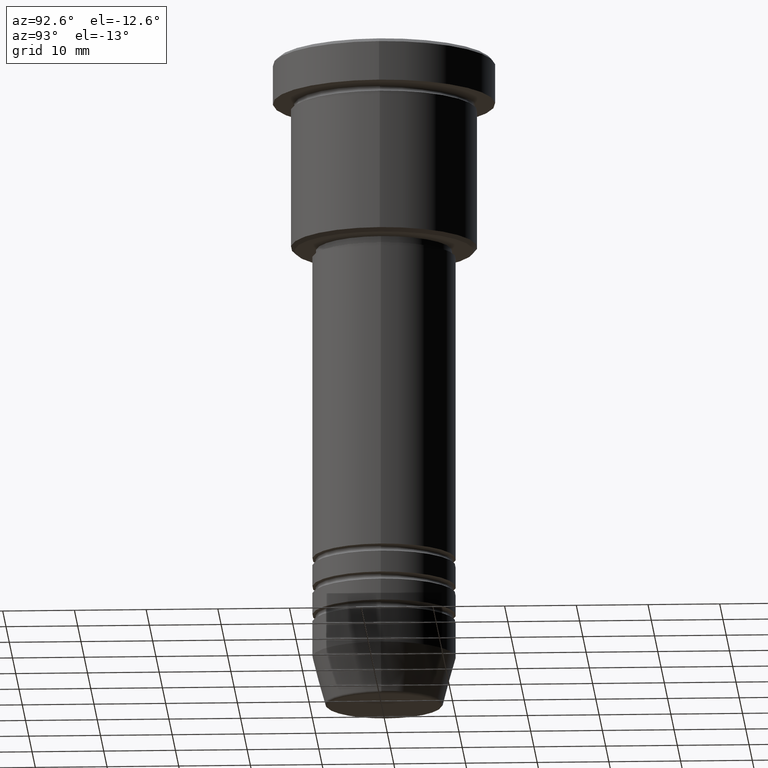
[diagram: clean part render]
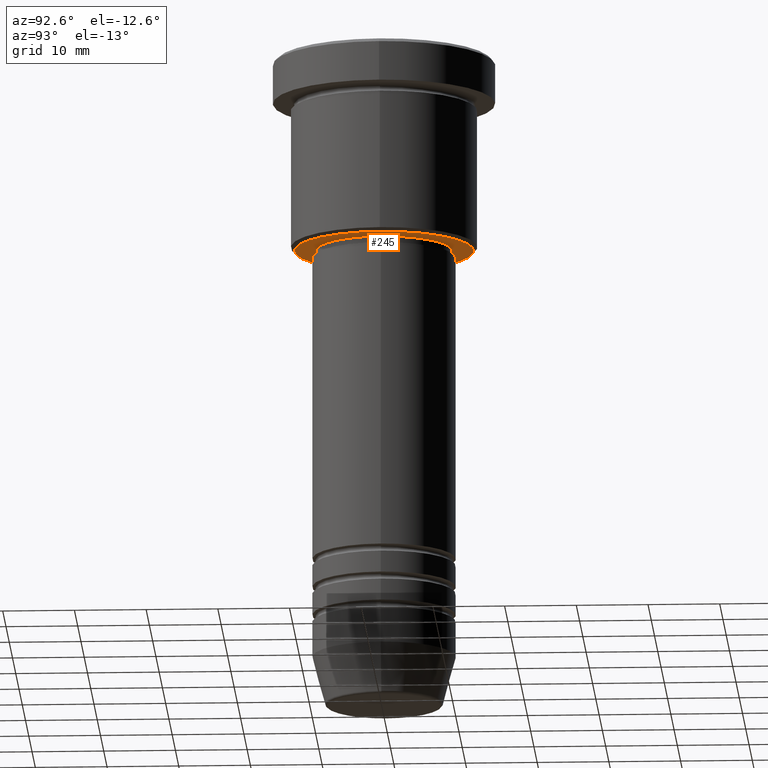
[diagram: same view with one face highlighted and labeled with its STEP entity id]
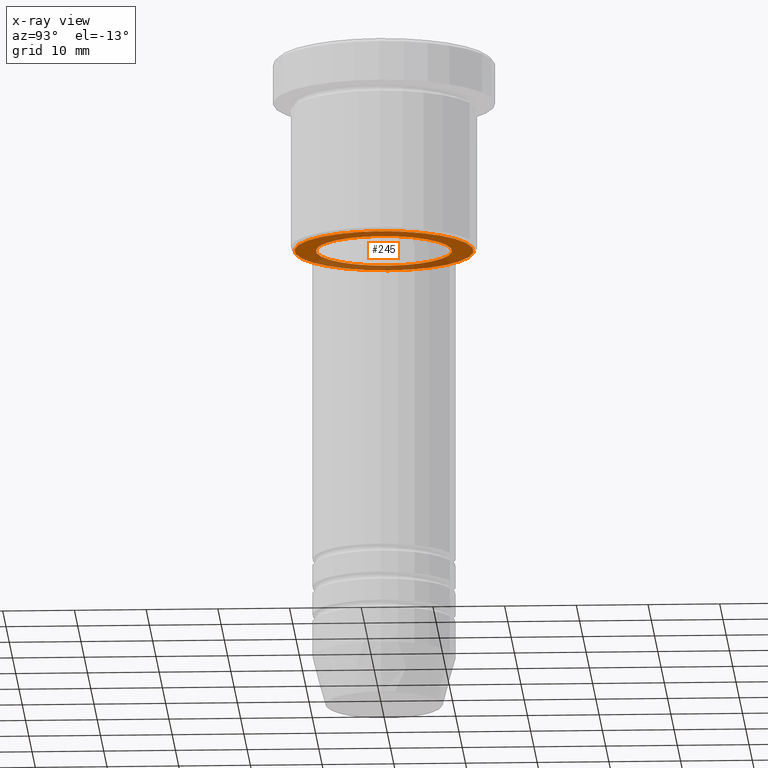
[diagram: x-ray of the same camera — body ghosted, the highlighted face saturated]
A machine part, auxiliary view. The second image highlights one B-rep face of the part: STEP entity #245.
The next image is the same camera in x-ray: the body ghosted, the highlighted face saturated — about 31% of this face is hidden behind the body in this view.
In plain terms, the highlighted planar face has unit normal (0, 0, -1).
Its self-contained STEP definition (entity closure, byte-faithful):
#39 = PLANE ( 'NONE',  #536 ) ;
#41 = EDGE_CURVE ( 'NONE', #998, #521, #109, .T. ) ;
#83 = DIRECTION ( 'NONE',  ( -1.000000000000000000, 0.000000000000000000, 0.000000000000000000 ) ) ;
#108 = DIRECTION ( 'NONE',  ( -1.000000000000000000, 0.000000000000000000, -0.000000000000000000 ) ) ;
#109 = CIRCLE ( 'NONE', #246, 9.500000000000001776 ) ;
#126 = FACE_OUTER_BOUND ( 'NONE', #354, .T. ) ;
#150 = DIRECTION ( 'NONE',  ( -0.000000000000000000, -0.000000000000000000, 1.000000000000000000 ) ) ;
#160 = ORIENTED_EDGE ( 'NONE', *, *, #725, .T. ) ;
#187 = DIRECTION ( 'NONE',  ( 1.000000000000000000, 0.000000000000000000, 0.000000000000000000 ) ) ;
#221 = ORIENTED_EDGE ( 'NONE', *, *, #41, .T. ) ;
#227 = VERTEX_POINT ( 'NONE', #737 ) ;
#236 = ORIENTED_EDGE ( 'NONE', *, *, #871, .T. ) ;
#245 = ADVANCED_FACE ( 'NONE', ( #126, #484 ), #39, .T. ) ;
#246 = AXIS2_PLACEMENT_3D ( 'NONE', #807, #1096, #187 ) ;
#264 = DIRECTION ( 'NONE',  ( 0.000000000000000000, 0.000000000000000000, -1.000000000000000000 ) ) ;
#354 = EDGE_LOOP ( 'NONE', ( #236, #617 ) ) ;
#370 = VERTEX_POINT ( 'NONE', #408 ) ;
#374 = AXIS2_PLACEMENT_3D ( 'NONE', #425, #150, #778 ) ;
#391 = EDGE_CURVE ( 'NONE', #227, #370, #947, .T. ) ;
#408 = CARTESIAN_POINT ( 'NONE',  ( 12.49999999999999822, 0.000000000000000000, -27.00000000000000355 ) ) ;
#425 = CARTESIAN_POINT ( 'NONE',  ( 0.000000000000000000, 0.000000000000000000, -27.00000000000000355 ) ) ;
#435 = EDGE_LOOP ( 'NONE', ( #221, #160 ) ) ;
#470 = CIRCLE ( 'NONE', #774, 12.49999999999999822 ) ;
#484 = FACE_BOUND ( 'NONE', #435, .T. ) ;
#496 = CARTESIAN_POINT ( 'NONE',  ( 0.000000000000000000, 0.000000000000000000, -27.00000000000000355 ) ) ;
#519 = DIRECTION ( 'NONE',  ( 0.000000000000000000, 0.000000000000000000, -1.000000000000000000 ) ) ;
#521 = VERTEX_POINT ( 'NONE', #1003 ) ;
#536 = AXIS2_PLACEMENT_3D ( 'NONE', #1110, #931, #108 ) ;
#617 = ORIENTED_EDGE ( 'NONE', *, *, #391, .T. ) ;
#680 = DIRECTION ( 'NONE',  ( -1.000000000000000000, 0.000000000000000000, 0.000000000000000000 ) ) ;
#725 = EDGE_CURVE ( 'NONE', #521, #998, #988, .T. ) ;
#737 = CARTESIAN_POINT ( 'NONE',  ( -12.49999999999999822, 1.561424668912875308E-15, -27.00000000000000355 ) ) ;
#774 = AXIS2_PLACEMENT_3D ( 'NONE', #991, #264, #83 ) ;
#778 = DIRECTION ( 'NONE',  ( 1.000000000000000000, 0.000000000000000000, 0.000000000000000000 ) ) ;
#807 = CARTESIAN_POINT ( 'NONE',  ( 0.000000000000000000, 0.000000000000000000, -27.00000000000000355 ) ) ;
#871 = EDGE_CURVE ( 'NONE', #370, #227, #470, .T. ) ;
#931 = DIRECTION ( 'NONE',  ( 0.000000000000000000, 0.000000000000000000, -1.000000000000000000 ) ) ;
#947 = CIRCLE ( 'NONE', #965, 12.49999999999999822 ) ;
#965 = AXIS2_PLACEMENT_3D ( 'NONE', #496, #519, #680 ) ;
#988 = CIRCLE ( 'NONE', #374, 9.500000000000001776 ) ;
#991 = CARTESIAN_POINT ( 'NONE',  ( 0.000000000000000000, 0.000000000000000000, -27.00000000000000355 ) ) ;
#998 = VERTEX_POINT ( 'NONE', #1030 ) ;
#1003 = CARTESIAN_POINT ( 'NONE',  ( -9.500000000000001776, 1.163414459189985682E-15, -27.00000000000000355 ) ) ;
#1030 = CARTESIAN_POINT ( 'NONE',  ( 9.500000000000001776, 0.000000000000000000, -27.00000000000000355 ) ) ;
#1096 = DIRECTION ( 'NONE',  ( -0.000000000000000000, -0.000000000000000000, 1.000000000000000000 ) ) ;
#1110 = CARTESIAN_POINT ( 'NONE',  ( 0.000000000000000000, 13.00000000000000000, -27.00000000000000355 ) ) ;